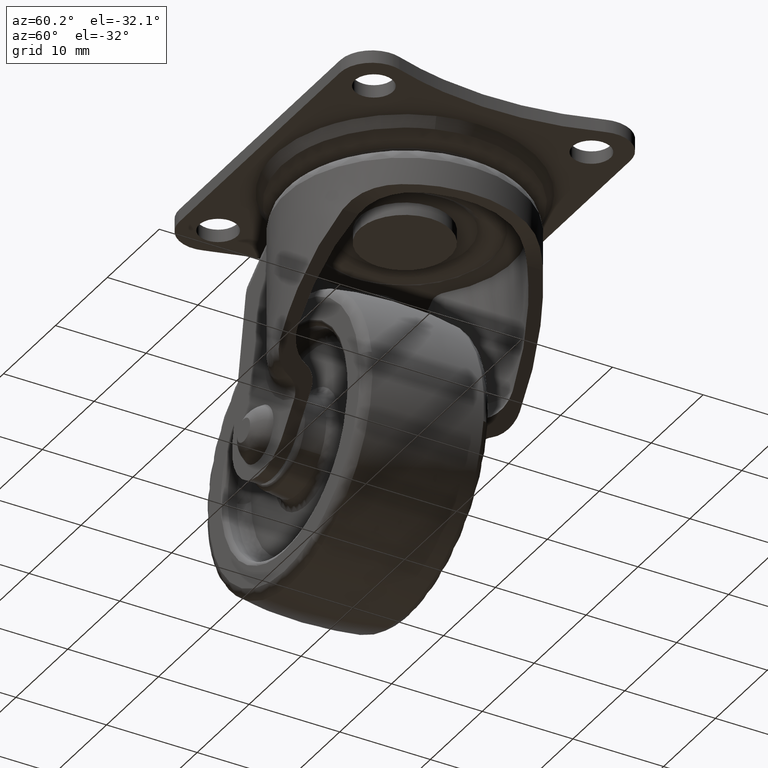
[diagram: clean part render]
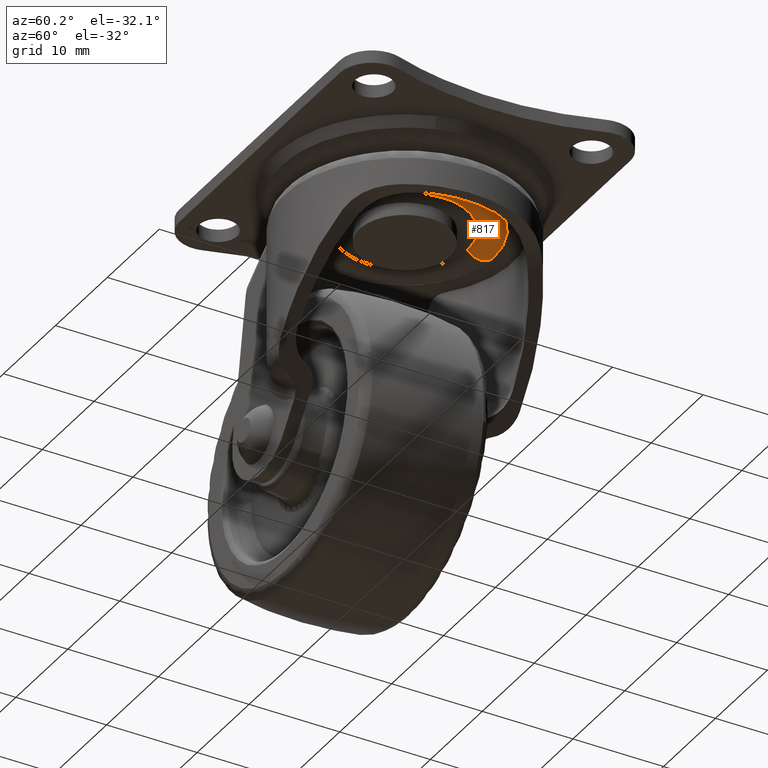
[diagram: same view with one face highlighted and labeled with its STEP entity id]
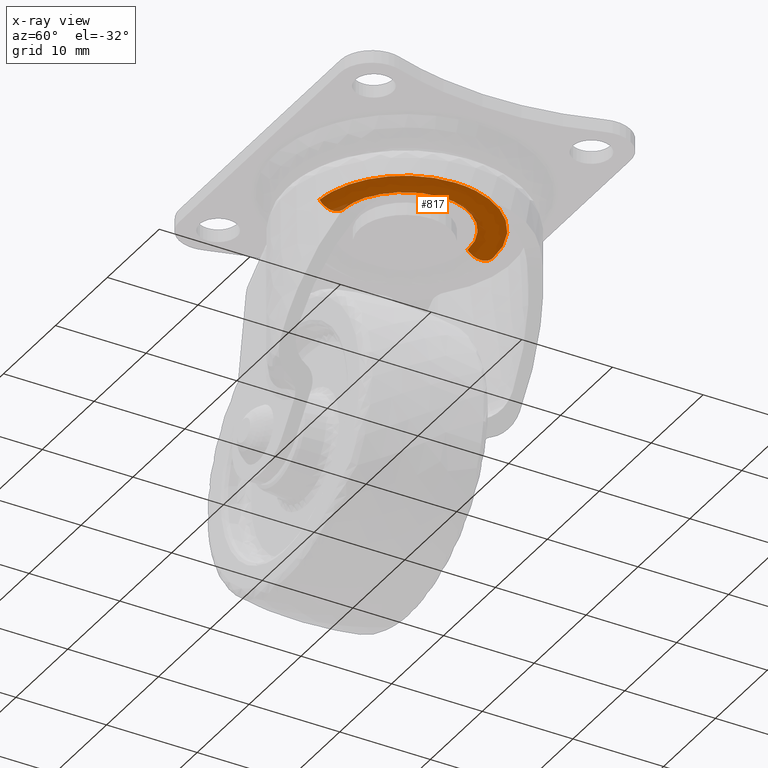
[diagram: x-ray of the same camera — body ghosted, the highlighted face saturated]
A machine part, auxiliary view. The second image highlights one B-rep face of the part: STEP entity #817.
The next image is the same camera in x-ray: the body ghosted, the highlighted face saturated — about 1% of this face is hidden behind the body in this view.
In plain terms, the highlighted face is a freeform B-spline surface patch.
Its self-contained STEP definition (entity closure, byte-faithful):
#633=CARTESIAN_POINT('',(0.486404723483149,-6.958239357041199,-5.800000001007094));
#634=VERTEX_POINT('',#633);
#652=CARTESIAN_POINT('',(0.685113903168183,-9.800863964210707,-5.800000000043839));
#653=VERTEX_POINT('',#652);
#654=CARTESIAN_POINT('',(0.685113903168183,-9.800863964210707,-5.800000000043839));
#655=CARTESIAN_POINT('',(0.585759313372577,-8.379551662246122,-7.645454542641047));
#656=CARTESIAN_POINT('',(0.486404723483149,-6.958239357041199,-5.800000001007094));
#664=(BOUNDED_CURVE()B_SPLINE_CURVE(2,(#654,#655,#656),.UNSPECIFIED.,.F.,.U.)B_SPLINE_CURVE_WITH_KNOTS((3,3),(-1.761945148887625,-0.238054852413957),.UNSPECIFIED.)CURVE()GEOMETRIC_REPRESENTATION_ITEM()RATIONAL_B_SPLINE_CURVE((0.857099604385467,0.523783091895252,0.857099603816084))REPRESENTATION_ITEM(''));
#665=EDGE_CURVE('',#653,#634,#664,.T.);
#684=CARTESIAN_POINT('',(-0.123444066449757,9.824004265757246,-5.800001137381171));
#685=VERTEX_POINT('',#684);
#699=CARTESIAN_POINT('',(-0.087650884241641,6.974668581800540,-5.800000000873399));
#700=VERTEX_POINT('',#699);
#701=CARTESIAN_POINT('',(-0.123444066449757,9.824004265757246,-5.800001137381171));
#702=CARTESIAN_POINT('',(-0.105547466103696,8.399335688362427,-7.645453019885482));
#703=CARTESIAN_POINT('',(-0.087650884241641,6.974668581800541,-5.800000000873398));
#711=(BOUNDED_CURVE()B_SPLINE_CURVE(2,(#701,#702,#703),.UNSPECIFIED.,.F.,.U.)B_SPLINE_CURVE_WITH_KNOTS((3,3),(-1.761944380506118,-0.238054852233304),.UNSPECIFIED.)CURVE()GEOMETRIC_REPRESENTATION_ITEM()RATIONAL_B_SPLINE_CURVE((0.876822692567474,0.535836472270286,0.876823035932806))REPRESENTATION_ITEM(''));
#712=EDGE_CURVE('',#685,#700,#711,.T.);
#730=CARTESIAN_POINT('',(-0.124475396017468,9.904915877941791,-5.686343531568793));
#731=CARTESIAN_POINT('',(9.780440481924323,10.029391273959261,-5.686343531568793));
#732=CARTESIAN_POINT('',(9.904915877941791,0.124475396017469,-5.686343531568793));
#733=CARTESIAN_POINT('',(10.022464646353898,-9.229265985244682,-5.686343531568793));
#734=CARTESIAN_POINT('',(0.690756529981902,-9.881584290467016,-5.686343531568793));
#735=CARTESIAN_POINT('',(-0.105554735634100,8.399336820165035,-7.984859506589426));
#736=CARTESIAN_POINT('',(8.293782084530932,8.504891555799132,-7.984859506589425));
#737=CARTESIAN_POINT('',(8.399336820165035,0.105554735634100,-7.984859506589426));
#738=CARTESIAN_POINT('',(8.499017797858913,-7.826387883373999,-7.984859506589427));
#739=CARTESIAN_POINT('',(0.585759316640661,-8.379551708997537,-7.984859506589427));
#740=CARTESIAN_POINT('',(-0.086634074391551,6.893757694020449,-5.686343576358317));
#741=CARTESIAN_POINT('',(6.807123619628897,6.980391768412000,-5.686343576358316));
#742=CARTESIAN_POINT('',(6.893757694020449,0.086634074391551,-5.686343576358317));
#743=CARTESIAN_POINT('',(6.975570880184729,-6.423509717799102,-5.686343576358316));
#744=CARTESIAN_POINT('',(0.480762098531534,-6.877519059321275,-5.686343576358317));
#752=(BOUNDED_SURFACE()B_SPLINE_SURFACE(2,2,((#730,#735,#740),(#731,#736,#741),(#732,#737,#742),(#733,#738,#743),(#734,#739,#744)),.UNSPECIFIED.,.F.,.F.,.U.)B_SPLINE_SURFACE_WITH_KNOTS((3,2,3),(3,3),(0.0,16.412297809273142,32.168103706175359),(0.0,3.890771261314743),.UNSPECIFIED.)GEOMETRIC_REPRESENTATION_ITEM()RATIONAL_B_SPLINE_SURFACE(((0.912589125112305,0.500070218742815,0.912589110442745),(0.645297958804009,0.353603042742485,0.645297948431065),(0.912589125112305,0.500070218742815,0.912589110442745),(0.655989605456341,0.359461729782498,0.655989594911532),(0.892061163539828,0.488821539625990,0.892061149200248)))REPRESENTATION_ITEM('')SURFACE());
#753=CARTESIAN_POINT('',(6.975219315122500,0.0,-5.800000000000090));
#754=VERTEX_POINT('',#753);
#755=CARTESIAN_POINT('',(6.975219315122500,0.0,-5.800000000000090));
#756=CARTESIAN_POINT('',(6.975219315122499,-6.504649028867170,-5.800000000000090));
#757=CARTESIAN_POINT('',(0.486404723483149,-6.958239357041199,-5.800000001007094));
#765=(BOUNDED_CURVE()B_SPLINE_CURVE(2,(#755,#756,#757),.UNSPECIFIED.,.F.,.U.)B_SPLINE_CURVE_WITH_KNOTS((3,3),(0.500000000000000,0.737833686528530),.UNSPECIFIED.)CURVE()GEOMETRIC_REPRESENTATION_ITEM()RATIONAL_B_SPLINE_CURVE((1.0,0.721360504041556,0.972879876373098))REPRESENTATION_ITEM(''));
#766=EDGE_CURVE('',#754,#634,#765,.T.);
#767=ORIENTED_EDGE('',*,*,#766,.F.);
#768=CARTESIAN_POINT('',(-0.087650884241641,6.974668581800540,-5.800000000873399));
#769=CARTESIAN_POINT('',(-0.043827172383343,6.975219315122499,-5.800000000000090));
#770=CARTESIAN_POINT('',(0.0,6.975219315122500,-5.800000000000090));
#771=CARTESIAN_POINT('',(6.975219315122501,6.975219315122501,-5.800000000000090));
#772=CARTESIAN_POINT('',(6.975219315122500,0.0,-5.800000000000090));
#780=(BOUNDED_CURVE()B_SPLINE_CURVE(2,(#768,#769,#770,#771,#772),.UNSPECIFIED.,.F.,.U.)B_SPLINE_CURVE_WITH_KNOTS((3,2,3),(0.247784295915464,0.250000000000000,0.500000000000000),.UNSPECIFIED.)CURVE()GEOMETRIC_REPRESENTATION_ITEM()RATIONAL_B_SPLINE_CURVE((0.994854295629595,0.997404141194969,1.0,0.707106781186547,1.0))REPRESENTATION_ITEM(''));
#781=EDGE_CURVE('',#700,#754,#780,.T.);
#782=ORIENTED_EDGE('',*,*,#781,.F.);
#783=ORIENTED_EDGE('',*,*,#712,.F.);
#784=CARTESIAN_POINT('',(9.824780684877510,0.0,-5.800000000000090));
#785=VERTEX_POINT('',#784);
#786=CARTESIAN_POINT('',(-0.123444066449757,9.824004265757246,-5.800001137381171));
#787=CARTESIAN_POINT('',(-0.061724463922294,9.824779809544898,-5.800001133852969));
#788=CARTESIAN_POINT('',(0.000000010964382,9.824779812303104,-5.800001130280153));
#789=CARTESIAN_POINT('',(9.824780690325259,9.824780251331296,-5.800000561589612));
#790=CARTESIAN_POINT('',(9.824780684877510,0.0,-5.800000000000090));
#798=(BOUNDED_CURVE()B_SPLINE_CURVE(2,(#786,#787,#788,#789,#790),.UNSPECIFIED.,.F.,.U.)B_SPLINE_CURVE_WITH_KNOTS((3,2,3),(0.247784555648676,0.250000000000000,0.500000000000000),.UNSPECIFIED.)CURVE()GEOMETRIC_REPRESENTATION_ITEM()RATIONAL_B_SPLINE_CURVE((0.994854893435306,0.997404445491354,1.0,0.707106781186547,1.0))REPRESENTATION_ITEM(''));
#799=EDGE_CURVE('',#685,#785,#798,.T.);
#800=ORIENTED_EDGE('',*,*,#799,.T.);
#801=CARTESIAN_POINT('',(9.824780684877510,0.0,-5.800000000000090));
#802=CARTESIAN_POINT('',(9.824780684877512,-9.161970004964578,-5.800000000000090));
#803=CARTESIAN_POINT('',(0.685113903168183,-9.800863964210707,-5.800000000043839));
#811=(BOUNDED_CURVE()B_SPLINE_CURVE(2,(#801,#802,#803),.UNSPECIFIED.,.F.,.U.)B_SPLINE_CURVE_WITH_KNOTS((3,3),(0.500000000000000,0.737833686535189),.UNSPECIFIED.)CURVE()GEOMETRIC_REPRESENTATION_ITEM()RATIONAL_B_SPLINE_CURVE((1.0,0.721360504033755,0.972879876387182))REPRESENTATION_ITEM(''));
#812=EDGE_CURVE('',#785,#653,#811,.T.);
#813=ORIENTED_EDGE('',*,*,#812,.T.);
#814=ORIENTED_EDGE('',*,*,#665,.T.);
#815=EDGE_LOOP('',(#767,#782,#783,#800,#813,#814));
#816=FACE_OUTER_BOUND('',#815,.T.);
#817=ADVANCED_FACE('',(#816),#752,.T.);